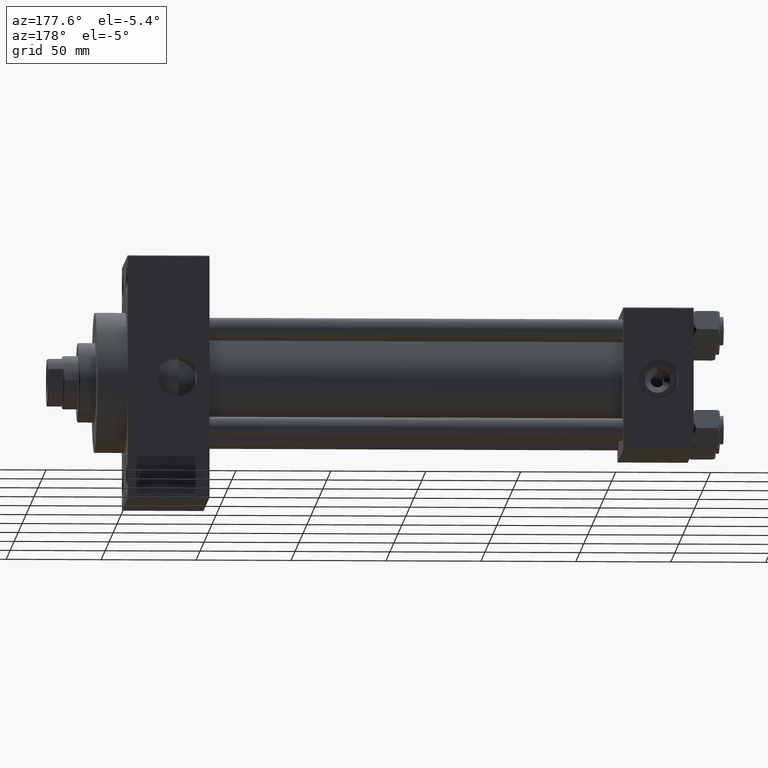
[diagram: clean part render]
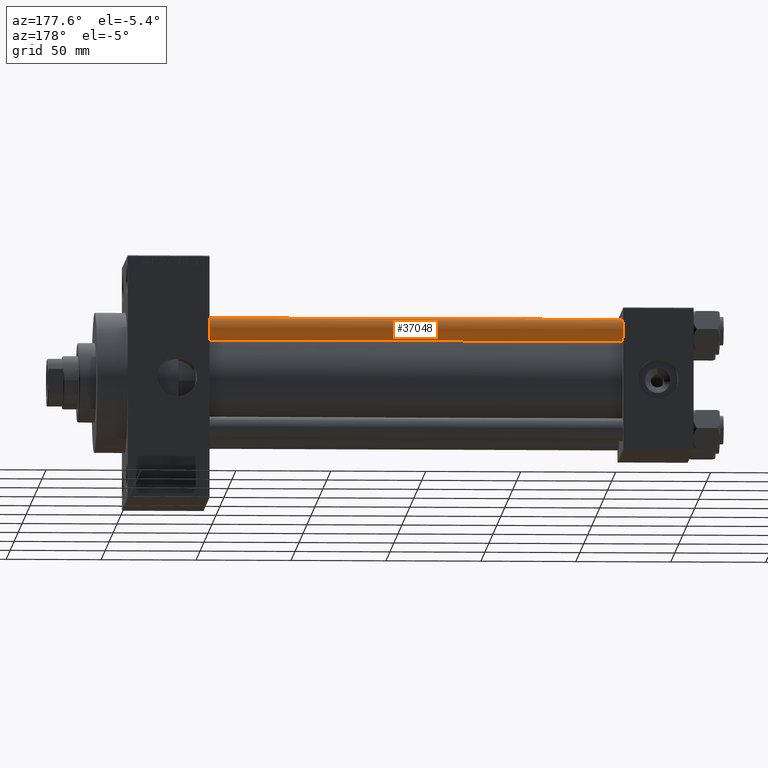
[diagram: same view with one face highlighted and labeled with its STEP entity id]
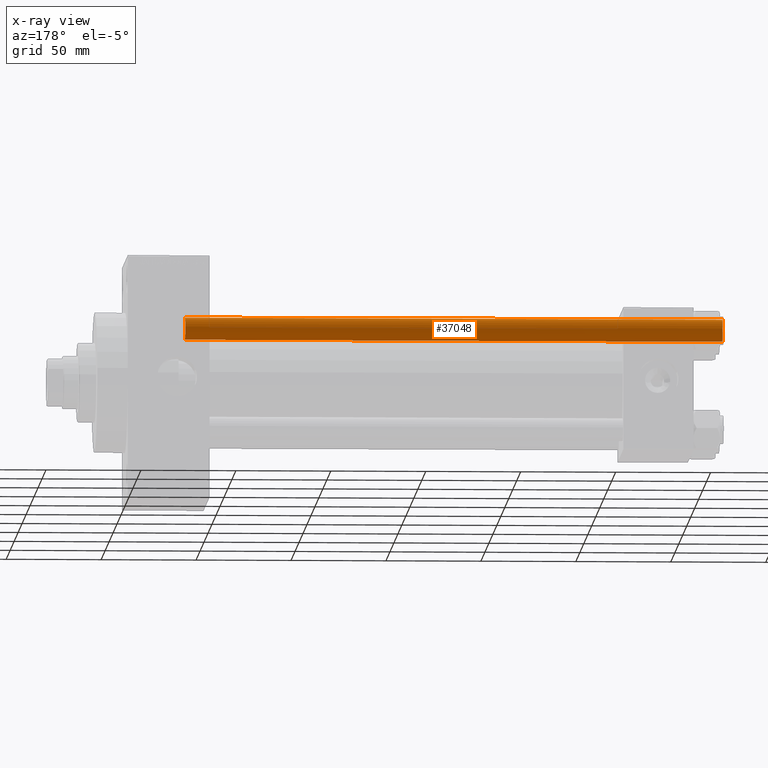
[diagram: x-ray of the same camera — body ghosted, the highlighted face saturated]
A machine part, auxiliary view. The second image highlights one B-rep face of the part: STEP entity #37048.
The next image is the same camera in x-ray: the body ghosted, the highlighted face saturated — about 0% of this face is hidden behind the body in this view.
In plain terms, the highlighted cylindrical surface (edge-blend (fillet) strip) has radius 6 mm, axis along (-1, -0, 0).
Its self-contained STEP definition (entity closure, byte-faithful):
#654 = DIRECTION ( 'NONE',  ( -0.000000000000000000, -0.000000000000000000, -1.000000000000000000 ) ) ;
#1803 = CARTESIAN_POINT ( 'NONE',  ( 0.000000000000000000, 0.000000000000000000, 284.0000000000000000 ) ) ;
#2074 = VECTOR ( 'NONE', #654, 1000.000000000000000 ) ;
#3142 = CARTESIAN_POINT ( 'NONE',  ( 0.000000000000000000, 0.000000000000000000, 283.4999999999999432 ) ) ;
#4455 = CYLINDRICAL_SURFACE ( 'NONE', #36331, 6.000000000000000888 ) ;
#4474 = LINE ( 'NONE', #30474, #14302 ) ;
#5315 = EDGE_CURVE ( 'NONE', #13252, #32925, #4474, .T. ) ;
#5402 = DIRECTION ( 'NONE',  ( -1.000000000000000000, 0.000000000000000000, 0.000000000000000000 ) ) ;
#5836 = EDGE_LOOP ( 'NONE', ( #46339, #6324, #28749, #29721 ) ) ;
#6324 = ORIENTED_EDGE ( 'NONE', *, *, #38591, .T. ) ;
#11566 = VERTEX_POINT ( 'NONE', #16059 ) ;
#13252 = VERTEX_POINT ( 'NONE', #18654 ) ;
#14302 = VECTOR ( 'NONE', #15681, 1000.000000000000000 ) ;
#14369 = CIRCLE ( 'NONE', #47149, 6.000000000000000888 ) ;
#14595 = DIRECTION ( 'NONE',  ( 0.000000000000000000, 0.000000000000000000, -1.000000000000000000 ) ) ;
#15428 = CARTESIAN_POINT ( 'NONE',  ( 0.000000000000000000, 0.000000000000000000, 0.4999999999999449329 ) ) ;
#15681 = DIRECTION ( 'NONE',  ( -0.000000000000000000, -0.000000000000000000, -1.000000000000000000 ) ) ;
#16059 = CARTESIAN_POINT ( 'NONE',  ( 6.000000000000000888, 7.347880794884120722E-16, 0.4999999999999449329 ) ) ;
#18654 = CARTESIAN_POINT ( 'NONE',  ( -6.000000000000000888, 0.000000000000000000, 283.4999999999999432 ) ) ;
#22591 = FACE_OUTER_BOUND ( 'NONE', #5836, .T. ) ;
#25723 = LINE ( 'NONE', #29292, #2074 ) ;
#26395 = DIRECTION ( 'NONE',  ( -0.000000000000000000, -0.000000000000000000, 1.000000000000000000 ) ) ;
#27687 = CARTESIAN_POINT ( 'NONE',  ( 6.000000000000000888, 7.347880794884120722E-16, 283.4999999999999432 ) ) ;
#28749 = ORIENTED_EDGE ( 'NONE', *, *, #40966, .T. ) ;
#29292 = CARTESIAN_POINT ( 'NONE',  ( 6.000000000000000888, 7.347880794884120722E-16, 284.0000000000000000 ) ) ;
#29646 = CIRCLE ( 'NONE', #35735, 6.000000000000000888 ) ;
#29721 = ORIENTED_EDGE ( 'NONE', *, *, #5315, .F. ) ;
#30474 = CARTESIAN_POINT ( 'NONE',  ( -6.000000000000000888, 0.000000000000000000, 284.0000000000000000 ) ) ;
#32925 = VERTEX_POINT ( 'NONE', #46041 ) ;
#35426 = DIRECTION ( 'NONE',  ( -0.000000000000000000, -0.000000000000000000, -1.000000000000000000 ) ) ;
#35735 = AXIS2_PLACEMENT_3D ( 'NONE', #15428, #26395, #40961 ) ;
#36331 = AXIS2_PLACEMENT_3D ( 'NONE', #1803, #35426, #5402 ) ;
#36782 = DIRECTION ( 'NONE',  ( 1.000000000000000000, 0.000000000000000000, 0.000000000000000000 ) ) ;
#37048 = ADVANCED_FACE ( 'NONE', ( #22591 ), #4455, .T. ) ;
#38591 = EDGE_CURVE ( 'NONE', #41851, #11566, #25723, .T. ) ;
#40961 = DIRECTION ( 'NONE',  ( 1.000000000000000000, 0.000000000000000000, 0.000000000000000000 ) ) ;
#40966 = EDGE_CURVE ( 'NONE', #11566, #32925, #29646, .T. ) ;
#41617 = EDGE_CURVE ( 'NONE', #13252, #41851, #14369, .T. ) ;
#41851 = VERTEX_POINT ( 'NONE', #27687 ) ;
#46041 = CARTESIAN_POINT ( 'NONE',  ( -6.000000000000000888, 0.000000000000000000, 0.4999999999999449329 ) ) ;
#46339 = ORIENTED_EDGE ( 'NONE', *, *, #41617, .T. ) ;
#47149 = AXIS2_PLACEMENT_3D ( 'NONE', #3142, #14595, #36782 ) ;